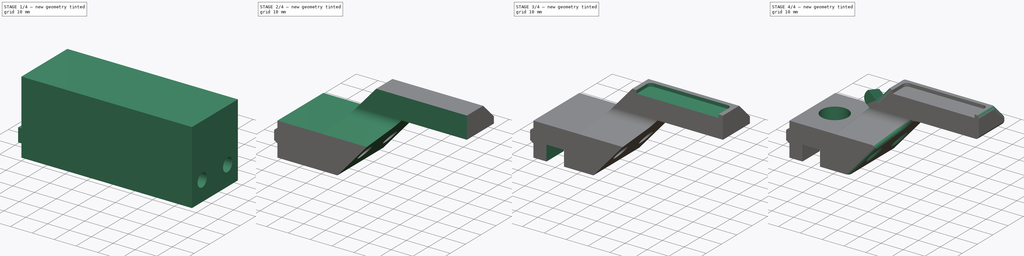
[diagram: build sequence overview — one tinted view per stage of 4, left to right]
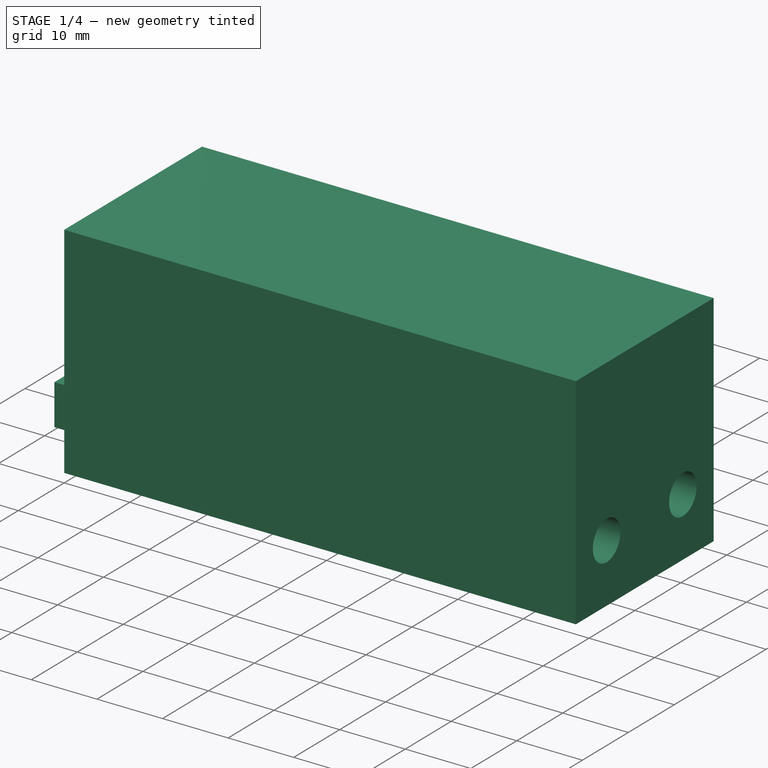
[diagram: stage 1 of 4 — iso view after this stage's code; geometry added in this stage tinted green]
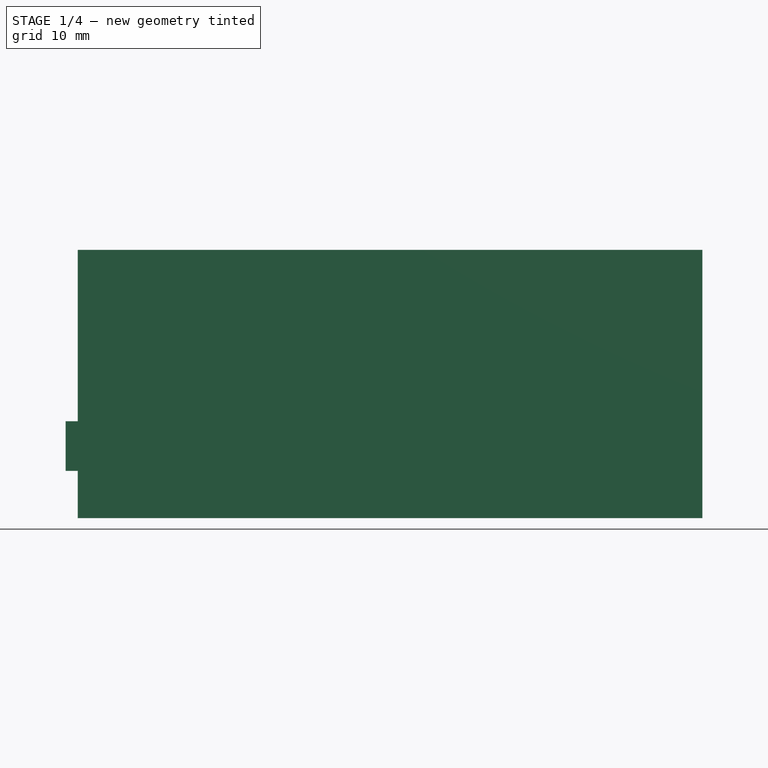
[diagram: stage 1 of 4 — front view after this stage's code; geometry added in this stage tinted green]
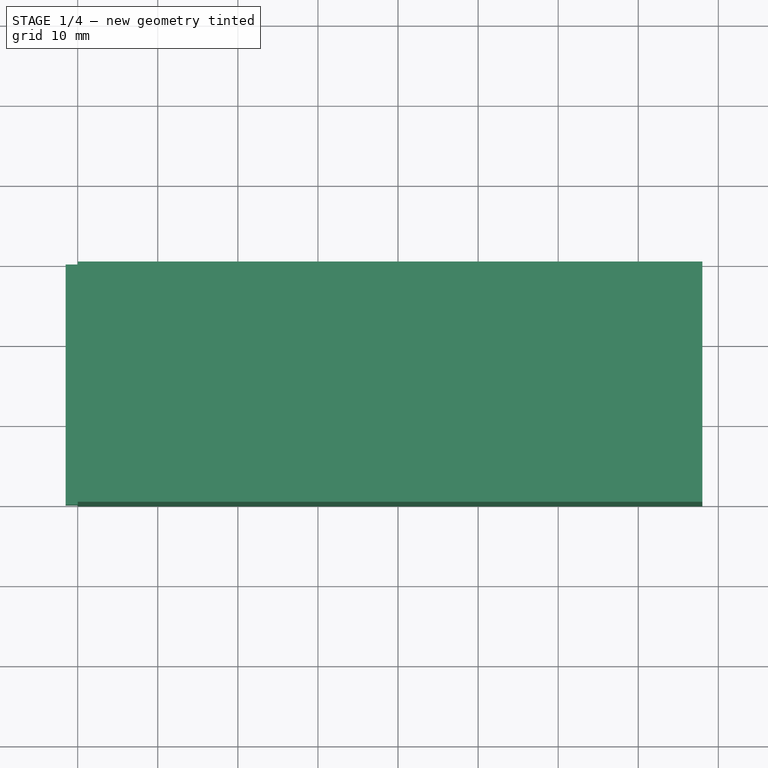
[diagram: stage 1 of 4 — top view after this stage's code; geometry added in this stage tinted green]
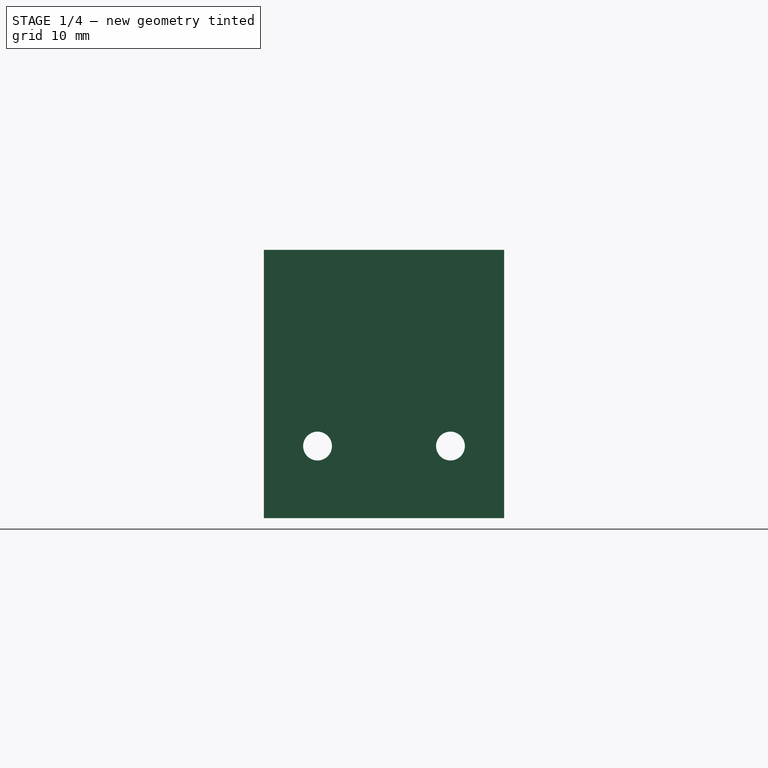
[diagram: stage 1 of 4 — right view after this stage's code; geometry added in this stage tinted green]
FCSTD DOCUMENT  (FreeCAD 1.0R39319 (Git))
Label: ZEndStopAndNozzleWisher
License: All rights reserved
LicenseURL: https://en.wikipedia.org/wiki/All_rights_reserved
objects: Sketcher::SketchObject×11, PartDesign::Pocket×8, PartDesign::Pad×3, PartDesign::Fillet×2, App::VarSet×1, PartDesign::Chamfer×1, PartDesign::Plane×1, PartDesign::Body×1
note: 66 computed .brp shape members not serialized (recipe doc carries the construction recipe); baked Part::Feature solids carry a one-line shape summary decoded from their .brp

FEATURE [App::VarSet] VarSet
  BackBodyToPlate = 11
  Border = 2
  DX = 78
  DY = 30
  DZ = 33.5
  EndStopDX = 20.5
  EndStopDZ = 15.3
  JstDX = 11.4
  JstDY = 8
  JstDZ = 7
  M3HeadDiameter = 6
  M3HeadRecess = 63
  M3Length = 19
  M3PassThrough = 3.6
  MiniScrewSelfTapping = 1.6
  NozzleDiameter = 16
  PcbFixDX = 24.2
  PcbFixDY = 15
  PoleBodyDepth = 8.3
  PoleBodyDiameter = 12.1
  ScrewDistanceFromBase = 9
  ScrewsDistance = 16.6
  WisherDX = 37.5
  WisherDY = 8.6
  WisherDZ = 10
  WisherOffsetFromRear = 17.6
  expr: DX = EndStopDX + NozzleDiameter + WisherDX + 2 * Border
  expr: M3HeadRecess = DX - M3Length + 4 mm
FEATURE [Sketcher::SketchObject] Sketch
  ArcFitTolerance = 1e-06
  AttachmentSupport = -> [XY_Plane]
  FullyConstrained = true
  MakeInternals = false
  MapMode = 5
  expr: Constraints[10] = VarSet.DY
  expr: Constraints[9] = VarSet.DX
  sketch-geometry (4):
    g0: LineSegment StartX=0 StartY=0 StartZ=0 EndX=78 EndY=0 EndZ=0
    g1: LineSegment StartX=78 StartY=0 StartZ=0 EndX=78 EndY=30 EndZ=0
    g2: LineSegment StartX=78 StartY=30 StartZ=0 EndX=0 EndY=30 EndZ=0
    g3: LineSegment StartX=0 StartY=30 StartZ=0 EndX=0 EndY=0 EndZ=0
  constraints (11):
    c: Coincident(g0,g1)
    c: Coincident(g1,g2)
    c: Coincident(g2,g3)
    c: Coincident(g3,g0)
    c: Horizontal(g0)
    c: Horizontal(g2)
    c: Vertical(g1)
    c: Vertical(g3)
    c: Coincident(g0,g-1)
    c: Distance(g0) = 78
    c: Distance(g3) = 30
FEATURE [PartDesign::Pad] Pad  label="Body Envelope"
  Direction = (0,0,1)
  Length = 33.5
  Length2 = 10
  Profile = -> Sketch
  ReferenceAxis = -> Sketch [N_Axis]
  Refine = true
  Suppressed = false
  Type = 0
  expr: Length = VarSet.DZ
FEATURE [Sketcher::SketchObject] Sketch001
  ArcFitTolerance = 1e-06
  AttachmentSupport = -> [Pad]
  ExternalGeometry = -> [Pad]
  FullyConstrained = true
  MakeInternals = false
  MapMode = 5
  Placement = pos=(0,0,0) rot=(0.57735,-0.57735,-0.57735;2.0944rad)
  expr: Constraints[13] = VarSet.M3PassThrough
  expr: Constraints[14] = VarSet.ScrewsDistance
  expr: Constraints[9] = VarSet.ScrewDistanceFromBase
  sketch-geometry (6):
    g0: LineSegment [constr] StartX=-23.3 StartY=9 StartZ=0 EndX=-6.7 EndY=9 EndZ=0
    g1: LineSegment [constr] StartX=-23.3 StartY=9 StartZ=0 EndX=-23.3 EndY=0 EndZ=0
    g2: LineSegment [constr] StartX=-23.3 StartY=9 StartZ=0 EndX=-30 EndY=0 EndZ=0
    g3: LineSegment [constr] StartX=-6.7 StartY=9 StartZ=0 EndX=-9e-16 EndY=0 EndZ=0
    g4: Circle CenterX=-23.3 CenterY=9 CenterZ=0 NormalX=0 NormalY=0 NormalZ=1 AngleXU=0 Radius=1.8
    g5: Circle CenterX=-6.7 CenterY=9 CenterZ=0 NormalX=0 NormalY=0 NormalZ=1 AngleXU=0 Radius=1.8
  constraints (15):
    c: Horizontal(g0)
    c: Coincident(g1,g0)
    c: PointOnObject(g1,g-1)
    c: Vertical(g1)
    c: Coincident(g2,g0)
    c: Coincident(g2,g-3)
    c: Coincident(g3,g0)
    c: Coincident(g3,g-1)
    c: Equal(g2,g3)
    c: Distance(g1) = 9
    c: Coincident(g4,g0)
    c: Coincident(g5,g0)
    c: Equal(g4,g5)
    c: Diameter(g4) = 3.6
    c: Distance(g0) = 16.6
FEATURE [PartDesign::Pocket] Pocket  label="Extrusion Fix"
  BaseFeature = -> Pad
  Direction = (1,0,0)
  Length = 5
  Length2 = 5
  Profile = -> Sketch001
  ReferenceAxis = -> Sketch001 [N_Axis]
  Refine = true
  Suppressed = false
  Type = 1
FEATURE [Sketcher::SketchObject] Sketch002
  ArcFitTolerance = 1e-06
  AttachmentSupport = -> [Pocket]
  ExternalGeometry = -> [Pocket]
  FullyConstrained = true
  MakeInternals = false
  MapMode = 5
  Placement = pos=(78,0,0) rot=(0.57735,0.57735,0.57735;2.0944rad)
  expr: Constraints[3] = VarSet.M3HeadDiameter
  sketch-geometry (2):
    g0: Circle CenterX=6.7 CenterY=9 CenterZ=0 NormalX=0 NormalY=0 NormalZ=1 AngleXU=0 Radius=3
    g1: Circle CenterX=23.3 CenterY=9 CenterZ=0 NormalX=0 NormalY=0 NormalZ=1 AngleXU=0 Radius=3
  constraints (4):
    c: Coincident(g0,g-3)
    c: Coincident(g1,g-4)
    c: Equal(g0,g1)
    c: Diameter(g0) = 6
FEATURE [PartDesign::Pocket] Pocket001  label="M3 Head Recess"
  BaseFeature = -> Pocket
  Direction = (-1,0,0)
  Length = 63
  Length2 = 5
  Profile = -> Sketch002
  ReferenceAxis = -> Sketch002 [N_Axis]
  Refine = true
  Suppressed = false
  Type = 0
  expr: Length = VarSet.M3HeadRecess
FEATURE [Sketcher::SketchObject] Sketch003
  ArcFitTolerance = 1e-06
  AttachmentSupport = -> [Pocket001]
  ExternalGeometry = -> [Pocket001]
  FullyConstrained = true
  MakeInternals = false
  MapMode = 5
  Placement = pos=(0,0,0) rot=(0.57735,-0.57735,-0.57735;2.0944rad)
  sketch-geometry (9):
    g0: LineSegment StartX=-30 StartY=12.1 StartZ=0 EndX=-30 EndY=5.9 EndZ=0
    g1: LineSegment StartX=-30 StartY=5.9 StartZ=0 EndX=0 EndY=5.9 EndZ=0
    g2: LineSegment StartX=0 StartY=5.9 StartZ=0 EndX=0 EndY=12.1 EndZ=0
    g3: LineSegment StartX=0 StartY=12.1 StartZ=0 EndX=-30 EndY=12.1 EndZ=0
    g4: LineSegment [constr] StartX=-30 StartY=5.9 StartZ=0 EndX=-23.3 EndY=9 EndZ=0
    g5: LineSegment [constr] StartX=-6.7 StartY=9 StartZ=0 EndX=0 EndY=12.1 EndZ=0
    g6: LineSegment [constr] StartX=-6.7 StartY=9 StartZ=0 EndX=0 EndY=5.9 EndZ=0
    g7: Circle CenterX=-23.3 CenterY=9 CenterZ=0 NormalX=0 NormalY=0 NormalZ=1 AngleXU=0 Radius=1.8
    g8: Circle CenterX=-6.7 CenterY=9 CenterZ=0 NormalX=0 NormalY=0 NormalZ=1 AngleXU=0 Radius=1.79999
  constraints (22):
    c: Coincident(g0,g1)
    c: Coincident(g1,g2)
    c: Coincident(g2,g3)
    c: Coincident(g3,g0)
    c: Vertical(g0)
    c: Vertical(g2)
    c: Horizontal(g1)
    c: Horizontal(g3)
    c: Distance(g2) = 6.2
    c: Coincident(g4,g0)
    c: Coincident(g4,g-4)
    c: Coincident(g5,g-3)
    c: Coincident(g5,g2)
    c: Coincident(g6,g5)
    c: Coincident(g6,g1)
    c: Equal(g6,g5)
    c: Equal(g5,g4)
    c: PointOnObject(g2,g-2)
    c: Coincident(g7,g4)
    c: Tangent(g7,g-4)
    c: Coincident(g8,g5)
    c: Tangent(g8,g-3)
FEATURE [PartDesign::Pad] Pad001  label="Extrusion Guide"
  BaseFeature = -> Pocket001
  Direction = (-1,0,0)
  Length = 1.5
  Length2 = 10
  Profile = -> Sketch003
  ReferenceAxis = -> Sketch003 [N_Axis]
  Refine = true
  Suppressed = false
  Type = 0
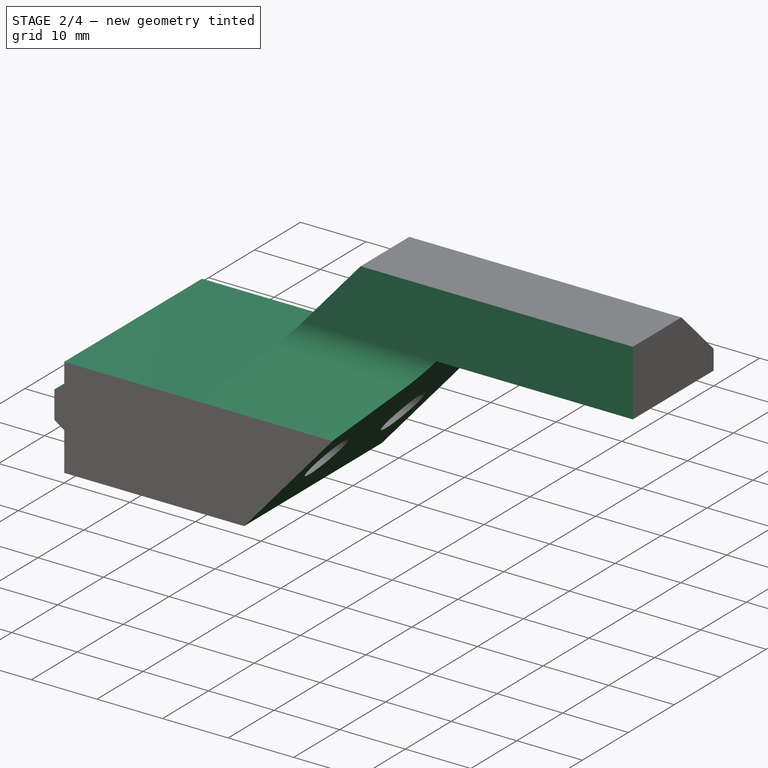
[diagram: stage 2 of 4 — iso view after this stage's code; geometry added in this stage tinted green]
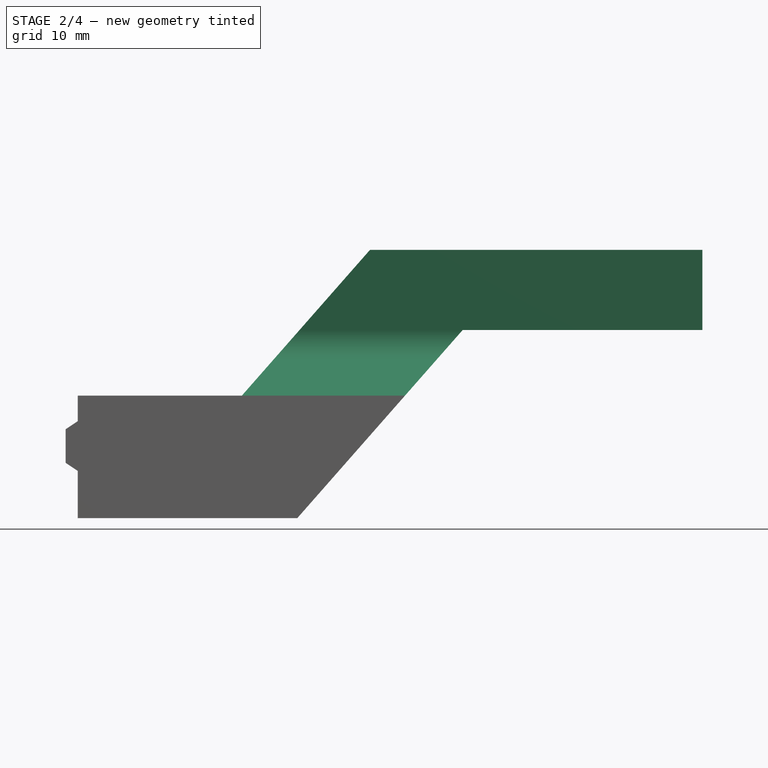
[diagram: stage 2 of 4 — front view after this stage's code; geometry added in this stage tinted green]
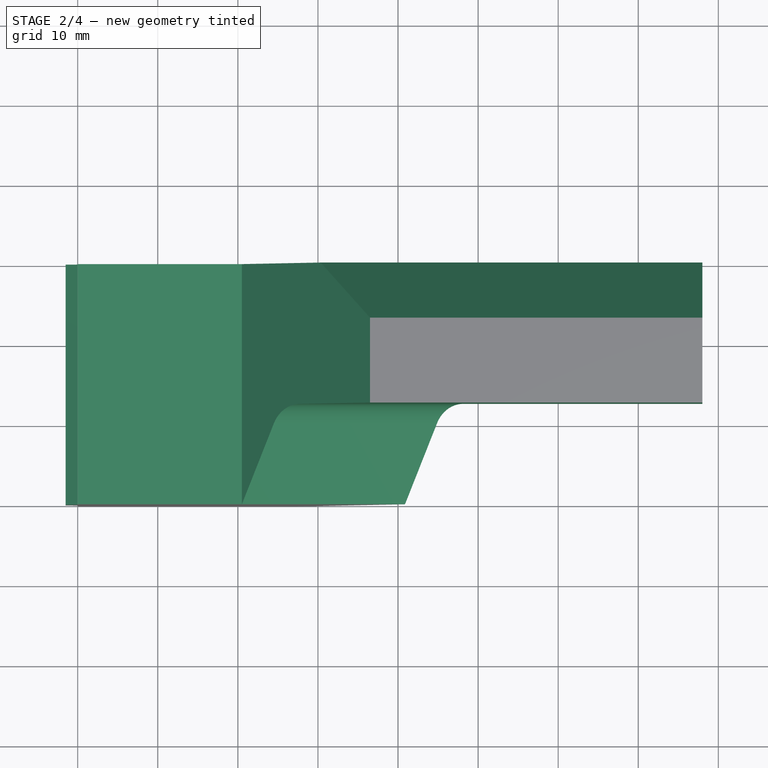
[diagram: stage 2 of 4 — top view after this stage's code; geometry added in this stage tinted green]
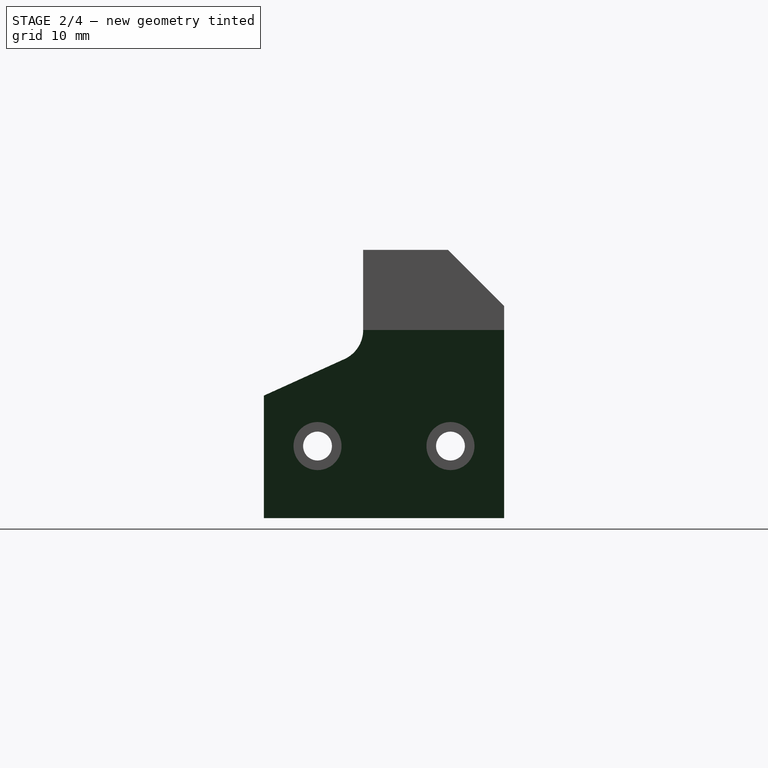
[diagram: stage 2 of 4 — right view after this stage's code; geometry added in this stage tinted green]
FEATURE [PartDesign::Chamfer] Chamfer  label="Extrusion Guide Chamfer"
  Angle = 45
  Base = -> Pad001 [Edge24,Edge21]
  BaseFeature = -> Pad001
  ChamferType = 1
  FlipDirection = false
  Refine = true
  Size = 1.49
  Size2 = 1
  SupportTransform = false
  Suppressed = false
  UseAllEdges = false
FEATURE [Sketcher::SketchObject] Sketch004
  ArcFitTolerance = 1e-06
  AttachmentSupport = -> [Chamfer]
  ExternalGeometry = -> [Chamfer]
  FullyConstrained = true
  MakeInternals = false
  MapMode = 5
  Placement = pos=(0,0,0) rot=(1,0,0;1.5708rad)
  expr: Constraints[16] = VarSet.WisherDZ
  expr: Constraints[2] = VarSet.EndStopDX
  expr: Constraints[5] = VarSet.EndStopDZ
  expr: Constraints[6] = VarSet.WisherDX + 2 * VarSet.Border
  sketch-geometry (13):
    g0: LineSegment StartX=0 StartY=15.3 StartZ=0 EndX=20.5 EndY=15.3 EndZ=0
    g1: LineSegment [constr] StartX=0 StartY=15.3 StartZ=0 EndX=0 EndY=0 EndZ=0
    g2: LineSegment [constr] StartX=78 StartY=33.5 StartZ=0 EndX=36.5 EndY=33.5 EndZ=0
    g3: LineSegment StartX=20.5 StartY=15.3 StartZ=0 EndX=36.5 EndY=33.5 EndZ=0
    g4: LineSegment StartX=36.5 StartY=33.5 StartZ=0 EndX=0 EndY=33.5 EndZ=0
    g5: LineSegment StartX=0 StartY=33.5 StartZ=0 EndX=0 EndY=15.3 EndZ=0
    g6: LineSegment [constr] StartX=78 StartY=33.5 StartZ=0 EndX=78 EndY=23.5 EndZ=0
    g7: LineSegment [constr] StartX=28.5 StartY=24.4 StartZ=0 EndX=39.9909 EndY=14.2981 EndZ=0
    g8: LineSegment [constr] StartX=0 StartY=0 StartZ=0 EndX=27.4212 EndY=0 EndZ=0
    g9: LineSegment StartX=27.4212 StartY=0 StartZ=0 EndX=48.0805 EndY=23.5 EndZ=0
    g10: LineSegment StartX=78 StartY=23.5 StartZ=0 EndX=48.0805 EndY=23.5 EndZ=0
    g11: LineSegment StartX=27.4212 StartY=0 StartZ=0 EndX=78 EndY=0 EndZ=0
    g12: LineSegment StartX=78 StartY=23.5 StartZ=0 EndX=78 EndY=0 EndZ=0
  constraints (34):
    c: PointOnObject(g0,g-2)
    c: Horizontal(g0)
    c: Distance(g0) = 20.5
    c: Coincident(g1,g0)
    c: Coincident(g1,g-1)
    c: Distance(g1) = 15.3
    c: Distance(g2) = 41.5
    c: Coincident(g3,g0)
    c: Coincident(g3,g2)
    c: Coincident(g4,g3)
    c: Coincident(g4,g-3)
    c: Horizontal(g4)
    c: Coincident(g5,g4)
    c: Coincident(g5,g0)
    c: Coincident(g6,g2)
    c: Vertical(g6)
    c: Distance(g6) = 10
    c: Coincident(g2,g-3)
    c: Symmetric(g3,g3,g7)
    c: Equal(g7,g1)
    c: Perpendicular(g3,g7)
    c: Coincident(g8,g1)
    c: PointOnObject(g8,g-1)
    c: Coincident(g9,g8)
    c: PointOnObject(g7,g9)
    c: Parallel(g9,g3)
    c: Coincident(g10,g6)
    c: Horizontal(g10)
    c: Coincident(g10,g9)
    c: Coincident(g11,g8)
    c: Horizontal(g11)
    c: Coincident(g12,g6)
    c: Vertical(g12)
    c: Coincident(g12,g11)
FEATURE [PartDesign::Pocket] Pocket002  label="Endstop To Wisher Front Shape"
  BaseFeature = -> Chamfer
  Direction = (0,1,-2e-16)
  Length = 5
  Length2 = 5
  Profile = -> Sketch004
  ReferenceAxis = -> Sketch004 [N_Axis]
  Refine = true
  Suppressed = false
  Type = 1
FEATURE [PartDesign::Plane] DatumPlane
  AttachmentSupport = -> [Pocket002]
  Length = 118.053
  MapMode = 5
  Placement = pos=(0,3.4e-15,15.3) rot=(0,0,1;0rad)
  ResizeMode = 0
  Width = 70.0532
FEATURE [Sketcher::SketchObject] Sketch005
  ArcFitTolerance = 1e-06
  AttachmentSupport = -> [Pocket002]
  ExternalGeometry = -> [Pocket002,DatumPlane]
  FullyConstrained = true
  MakeInternals = false
  MapMode = 5
  Placement = pos=(78,0,0) rot=(0.57735,0.57735,0.57735;2.0944rad)
  expr: Constraints[10] = VarSet.WisherDZ
  expr: Constraints[19] = VarSet.WisherOffsetFromRear - VarSet.WisherDY - VarSet.Border
  expr: Constraints[1] = VarSet.WisherOffsetFromRear
  sketch-geometry (10):
    g0: LineSegment [constr] StartX=30 StartY=33.5 StartZ=0 EndX=12.4 EndY=33.5 EndZ=0
    g1: LineSegment StartX=-5.955e-13 StartY=15.3 StartZ=0 EndX=10.0516 EndY=19.8569 EndZ=0
    g2: LineSegment StartX=-5.955e-13 StartY=15.3 StartZ=0 EndX=0 EndY=33.5 EndZ=0
    g3: LineSegment StartX=0 StartY=33.5 StartZ=0 EndX=12.4 EndY=33.5 EndZ=0
    g4: LineSegment StartX=12.4 StartY=33.5 StartZ=0 EndX=12.4 EndY=23.5 EndZ=0
    g5: ArcOfCircle CenterX=8.4 CenterY=23.5 CenterZ=0 NormalX=0 NormalY=0 NormalZ=1 AngleXU=0 Radius=4 StartAngle=5.13803 EndAngle=6.28319
    g6: LineSegment [constr] StartX=12.4 StartY=23.5 StartZ=0 EndX=8.4 EndY=23.5 EndZ=0
    g7: LineSegment StartX=30 StartY=33.5 StartZ=0 EndX=23 EndY=33.5 EndZ=0
    g8: LineSegment StartX=30 StartY=33.5 StartZ=0 EndX=30 EndY=26.5 EndZ=0
    g9: LineSegment StartX=23 StartY=33.5 StartZ=0 EndX=30 EndY=26.5 EndZ=0
  constraints (25):
    c: PointOnObject(g0,g-3)
    c: Distance(g0) = 17.6
    c: Coincident(g0,g-3)
    c: Symmetric(g-4,g-4,g1)
    c: Coincident(g2,g1)
    c: Coincident(g2,g-3)
    c: Coincident(g3,g2)
    c: Coincident(g3,g0)
    c: Coincident(g4,g0)
    c: Vertical(g4)
    c: Distance(g4) = 10
    c: Coincident(g5,g4)
    c: Coincident(g6,g4)
    c: Horizontal(g6)
    c: Coincident(g6,g5)
    c: Tangent(g1,g5) = -1.5708
    c: Diameter(g5) = 8
    c: Coincident(g7,g0)
    c: PointOnObject(g7,g0)
    c: Distance(g7) = 7
    c: Coincident(g8,g0)
    c: Vertical(g8)
    c: Equal(g8,g7)
    c: Coincident(g9,g7)
    c: Coincident(g9,g8)
FEATURE [PartDesign::Pocket] Pocket003  label="Endstop To Wisher Side Shape"
  BaseFeature = -> Pocket002
  Direction = (-1,0,0)
  Length = 5
  Length2 = 5
  Profile = -> Sketch005
  ReferenceAxis = -> Sketch005 [N_Axis]
  Refine = true
  Suppressed = false
  Type = 1
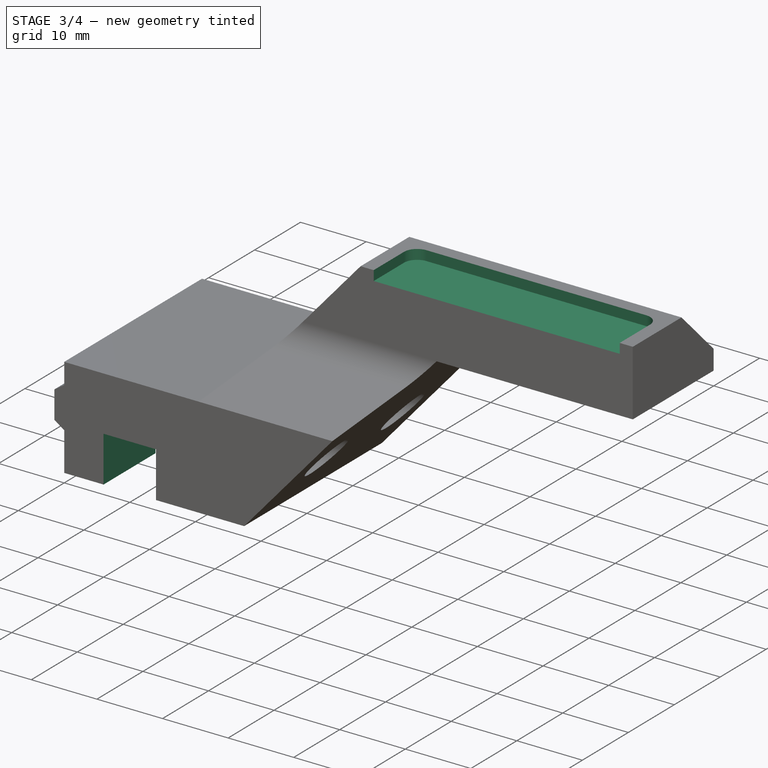
[diagram: stage 3 of 4 — iso view after this stage's code; geometry added in this stage tinted green]
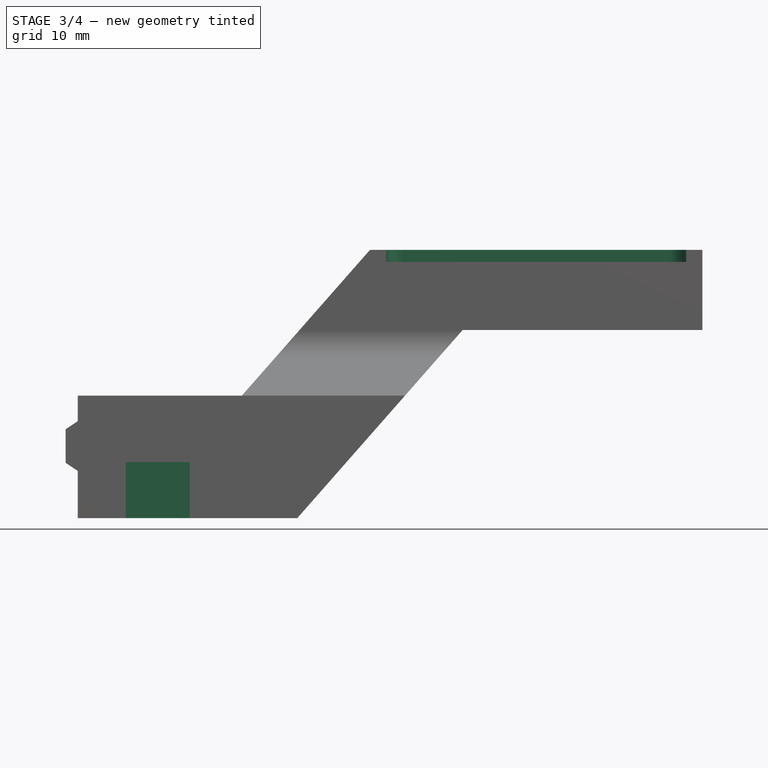
[diagram: stage 3 of 4 — front view after this stage's code; geometry added in this stage tinted green]
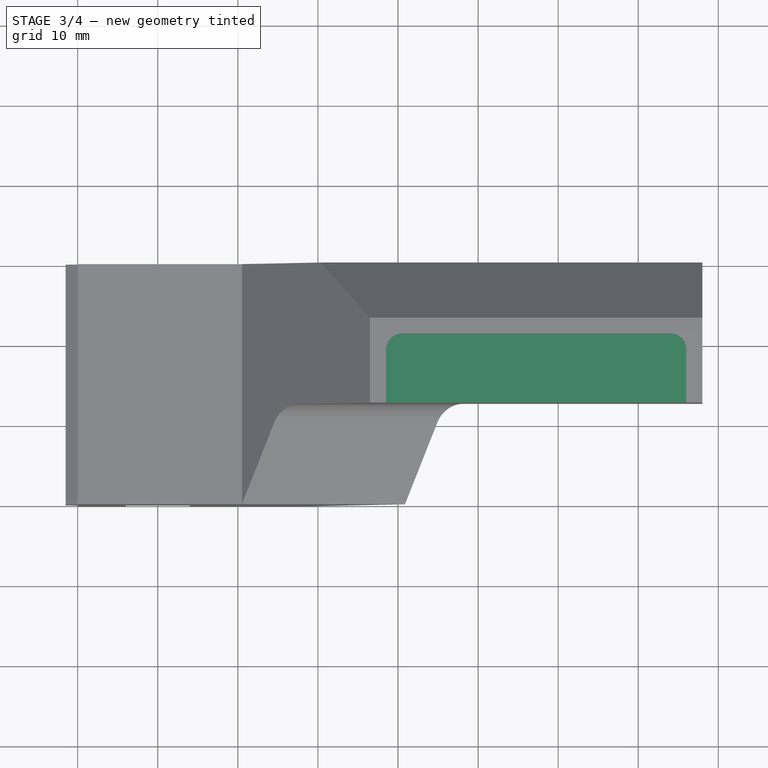
[diagram: stage 3 of 4 — top view after this stage's code; geometry added in this stage tinted green]
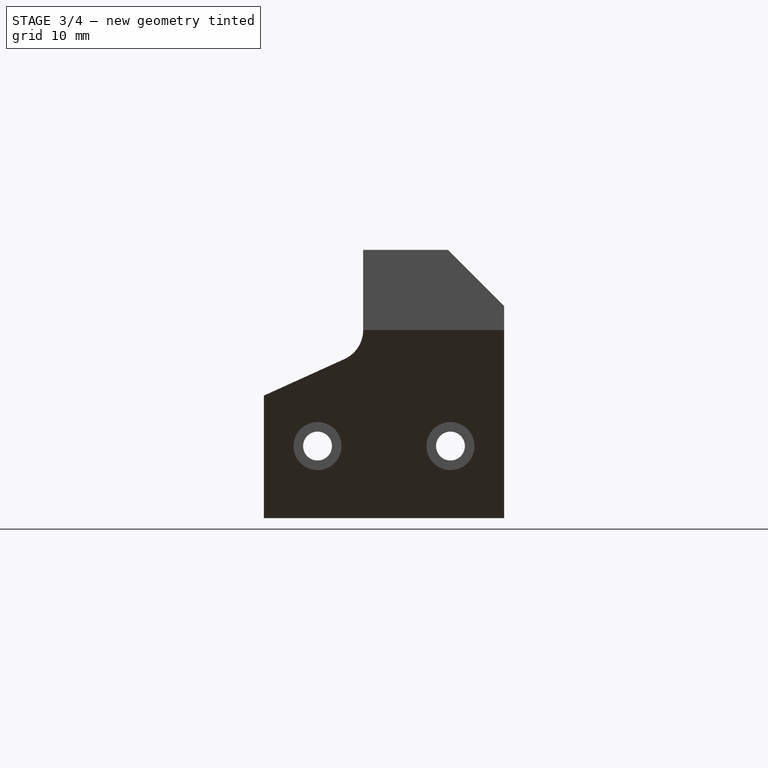
[diagram: stage 3 of 4 — right view after this stage's code; geometry added in this stage tinted green]
FEATURE [Sketcher::SketchObject] Sketch006
  ArcFitTolerance = 1e-06
  AttachmentSupport = -> [Pocket003]
  ExternalGeometry = -> [Pocket003]
  FullyConstrained = true
  MakeInternals = false
  MapMode = 5
  Placement = pos=(0,0,33.5) rot=(0,0,1;0rad)
  expr: Constraints[11] = VarSet.WisherDY
  expr: Constraints[4] = VarSet.WisherDX
  expr: Constraints[7] = VarSet.Border
  sketch-geometry (10):
    g0: LineSegment StartX=38.5 StartY=12.4 StartZ=0 EndX=76 EndY=12.4 EndZ=0
    g1: LineSegment StartX=76 StartY=12.4 StartZ=0 EndX=76 EndY=19 EndZ=0
    g2: LineSegment StartX=38.5 StartY=12.4 StartZ=0 EndX=38.5 EndY=19 EndZ=0
    g3: LineSegment [constr] StartX=76 StartY=12.4 StartZ=0 EndX=78 EndY=12.4 EndZ=0
    g4: LineSegment StartX=40.5 StartY=21 StartZ=0 EndX=74 EndY=21 EndZ=0
    g5: LineSegment [constr] StartX=57.25 StartY=12.4 StartZ=0 EndX=57.25 EndY=21 EndZ=0
    g6: ArcOfCircle CenterX=40.5 CenterY=19 CenterZ=0 NormalX=0 NormalY=0 NormalZ=1 AngleXU=0 Radius=2 StartAngle=1.5708 EndAngle=3.14159
    g7: GeomPoint [constr] X=38.5 Y=21 Z=0
    g8: ArcOfCircle CenterX=74 CenterY=19 CenterZ=0 NormalX=0 NormalY=0 NormalZ=1 AngleXU=0 Radius=2 StartAngle=0 EndAngle=1.5708
    g9: GeomPoint [constr] X=76 Y=21 Z=0
  constraints (24):
    c: Coincident(g1,g0)
    c: Vertical(g1)
    c: Coincident(g2,g0)
    c: Vertical(g2)
    c: Distance(g0) = 37.5
    c: Coincident(g3,g0)
    c: Coincident(g3,g-3)
    c: Distance(g3) = 2
    c: Horizontal(g4)
    c: Symmetric(g0,g0,g5)
    c: Symmetric(g7,g9,g5)
    c: Distance(g5) = 8.6
    c: PointOnObject(g7,g2)
    c: PointOnObject(g7,g4)
    c: Tangent(g2,g6) = 1.5708
    c: Tangent(g4,g6) = 1.5708
    c: PointOnObject(g9,g1)
    c: PointOnObject(g9,g4)
    c: Tangent(g1,g8) = -1.5708
    c: Tangent(g4,g8) = 1.5708
    c: Equal(g8,g6)
    c: Diameter(g6) = 4
    c: PointOnObject(g0,g-4)
    c: PointOnObject(g0,g-4)
FEATURE [PartDesign::Pocket] Pocket004  label="Silicone Wisher"
  BaseFeature = -> Pocket003
  Direction = (0,0,-1)
  Length = 1.5
  Length2 = 5
  Profile = -> Sketch006
  ReferenceAxis = -> Sketch006 [N_Axis]
  Refine = true
  Suppressed = false
  Type = 0
FEATURE [Sketcher::SketchObject] Sketch007
  ArcFitTolerance = 1e-06
  AttachmentSupport = -> [Pocket004]
  ExternalGeometry = -> [Pocket004]
  FullyConstrained = true
  MakeInternals = false
  MapMode = 5
  Placement = pos=(0,0,0) rot=(1,0,0;3.14159rad)
  expr: Constraints[23] = VarSet.MiniScrewSelfTapping
  expr: Constraints[8] = VarSet.PcbFixDY
  expr: Constraints[9] = VarSet.PcbFixDX
  sketch-geometry (17):
    g0: LineSegment [constr] StartX=2.5 StartY=-2.9 StartZ=0 EndX=2.5 EndY=-27.1 EndZ=0
    g1: LineSegment [constr] StartX=2.5 StartY=-27.1 StartZ=0 EndX=17.5 EndY=-27.1 EndZ=0
    g2: LineSegment [constr] StartX=17.5 StartY=-27.1 StartZ=0 EndX=17.5 EndY=-2.9 EndZ=0
    g3: LineSegment [constr] StartX=17.5 StartY=-2.9 StartZ=0 EndX=2.5 EndY=-2.9 EndZ=0
    g4: LineSegment [constr] StartX=2.5 StartY=-2.9 StartZ=0 EndX=2.5 EndY=0 EndZ=0
    g5: LineSegment [constr] StartX=2.5 StartY=-27.1 StartZ=0 EndX=2.5 EndY=-30 EndZ=0
    g6: Circle CenterX=17.5 CenterY=-27.1 CenterZ=0 NormalX=0 NormalY=0 NormalZ=1 AngleXU=0 Radius=0.8
    g7: Circle CenterX=2.5 CenterY=-27.1 CenterZ=0 NormalX=0 NormalY=0 NormalZ=1 AngleXU=0 Radius=0.8
    g8: Circle CenterX=2.5 CenterY=-2.9 CenterZ=0 NormalX=0 NormalY=0 NormalZ=1 AngleXU=0 Radius=0.8
    g9: Circle CenterX=17.5 CenterY=-2.9 CenterZ=0 NormalX=0 NormalY=0 NormalZ=1 AngleXU=0 Radius=0.8
    g10: LineSegment [constr] StartX=0 StartY=0 StartZ=0 EndX=6 EndY=0 EndZ=0
    g11: LineSegment StartX=6 StartY=0 StartZ=0 EndX=6 EndY=-11.3 EndZ=0
    g12: LineSegment StartX=6 StartY=-11.3 StartZ=0 EndX=14 EndY=-11.3 EndZ=0
    g13: LineSegment StartX=14 StartY=-11.3 StartZ=0 EndX=14 EndY=0 EndZ=0
    g14: LineSegment StartX=14 StartY=0 StartZ=0 EndX=6 EndY=0 EndZ=0
    g15: LineSegment [constr] StartX=6 StartY=-11.3 StartZ=0 EndX=2.5 EndY=-2.9 EndZ=0
    g16: LineSegment [constr] StartX=14 StartY=-11.3 StartZ=0 EndX=17.5 EndY=-2.9 EndZ=0
  constraints (44):
    c: Coincident(g0,g1)
    c: Coincident(g1,g2)
    c: Coincident(g2,g3)
    c: Coincident(g3,g0)
    c: Vertical(g0)
    c: Vertical(g2)
    c: Horizontal(g1)
    c: Horizontal(g3)
    c: Distance(g3) = 15
    c: Distance(g0) = 24.2
    c: Coincident(g4,g0)
    c: PointOnObject(g4,g-1)
    c: Vertical(g4)
    c: Coincident(g5,g0)
    c: Vertical(g5)
    c: Equal(g5,g4)
    c: Coincident(g6,g1)
    c: Coincident(g7,g0)
    c: Coincident(g8,g0)
    c: Coincident(g9,g2)
    c: Equal(g8,g9)
    c: Equal(g9,g6)
    c: Equal(g6,g7)
    c: Diameter(g8) = 1.6
    c: Coincident(g10,g-1)
    c: PointOnObject(g10,g-1)
    c: Distance(g10) = 6
    c: Coincident(g11,g12)
    c: Coincident(g12,g13)
    c: Coincident(g13,g14)
    c: Coincident(g14,g11)
    c: Vertical(g11)
    c: Vertical(g13)
    c: Horizontal(g12)
    c: Horizontal(g14)
    c: Coincident(g11,g10)
    c: Distance(g14) = 8
    c: Distance(g11) = 11.3
    c: Coincident(g15,g11)
    c: Coincident(g15,g0)
    c: Coincident(g16,g12)
    c: Coincident(g16,g2)
    c: Equal(g16,g15)
    c: PointOnObject(g5,g-3)
FEATURE [PartDesign::Pocket] Pocket005  label="JST Connector and PCB Fix"
  BaseFeature = -> Pocket004
  Direction = (0,0,1)
  Length = 7
  Length2 = 5
  Profile = -> Sketch007
  ReferenceAxis = -> Sketch007 [N_Axis]
  Refine = true
  Suppressed = false
  Type = 0
  expr: Length = VarSet.JstDZ
FEATURE [Sketcher::SketchObject] Sketch008
  ArcFitTolerance = 1e-06
  AttachmentSupport = -> [Pocket005]
  ExternalGeometry = -> [Pocket005]
  FullyConstrained = true
  MakeInternals = false
  MapMode = 5
  Placement = pos=(0,0,0) rot=(1,0,0;3.14159rad)
  sketch-geometry (5):
    g0: LineSegment StartX=4.6 StartY=-11.3 StartZ=0 EndX=4.6 EndY=-17.3 EndZ=0
    g1: LineSegment StartX=4.6 StartY=-17.3 StartZ=0 EndX=18.1 EndY=-17.3 EndZ=0
    g2: LineSegment StartX=18.1 StartY=-17.3 StartZ=0 EndX=18.1 EndY=-11.3 EndZ=0
    g3: LineSegment StartX=18.1 StartY=-11.3 StartZ=0 EndX=4.6 EndY=-11.3 EndZ=0
    g4: LineSegment [constr] StartX=4.6 StartY=-17.3 StartZ=0 EndX=0 EndY=-17.3 EndZ=0
  constraints (15):
    c: Coincident(g0,g1)
    c: Coincident(g1,g2)
    c: Coincident(g2,g3)
    c: Coincident(g3,g0)
    c: Vertical(g0)
    c: Vertical(g2)
    c: Horizontal(g1)
    c: Horizontal(g3)
    c: Coincident(g4,g0)
    c: PointOnObject(g4,g-2)
    c: Horizontal(g4)
    c: Distance(g4) = 4.6
    c: Distance(g0) = 6
    c: Distance(g3) = 13.5
    c: PointOnObject(g-3,g3)
FEATURE [PartDesign::Pocket] Pocket006  label="Push Button"
  BaseFeature = -> Pocket005
  Direction = (0,0,1)
  Length = 7.5
  Length2 = 5
  Profile = -> Sketch008
  ReferenceAxis = -> Sketch008 [N_Axis]
  Refine = true
  Suppressed = false
  Type = 0
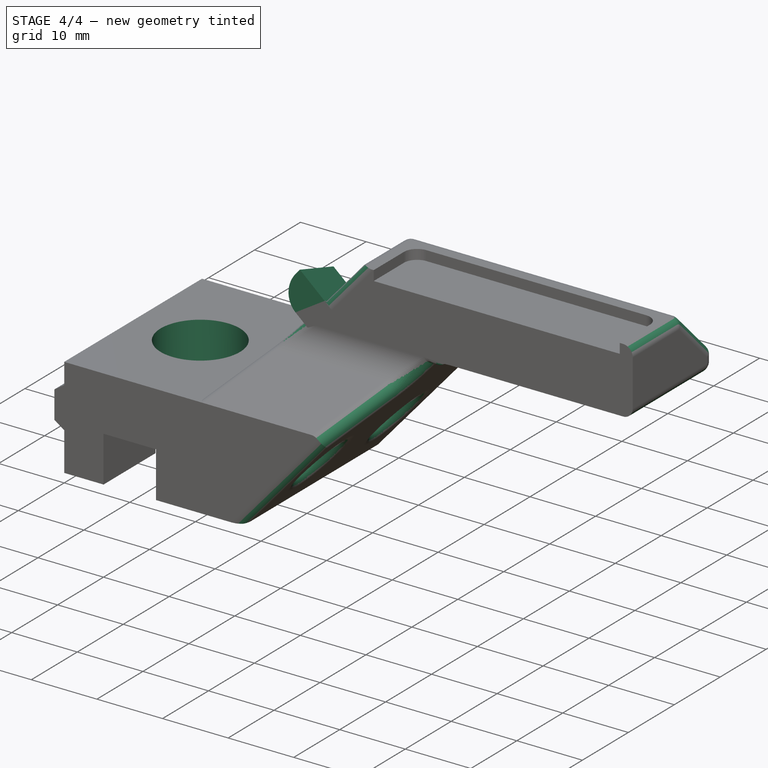
[diagram: stage 4 of 4 — iso view after this stage's code; geometry added in this stage tinted green]
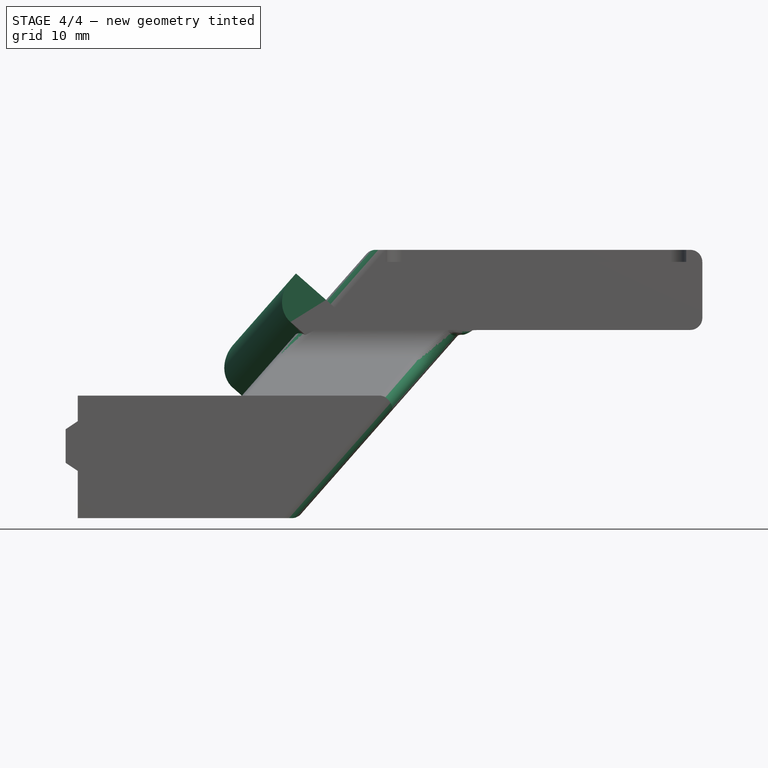
[diagram: stage 4 of 4 — front view after this stage's code; geometry added in this stage tinted green]
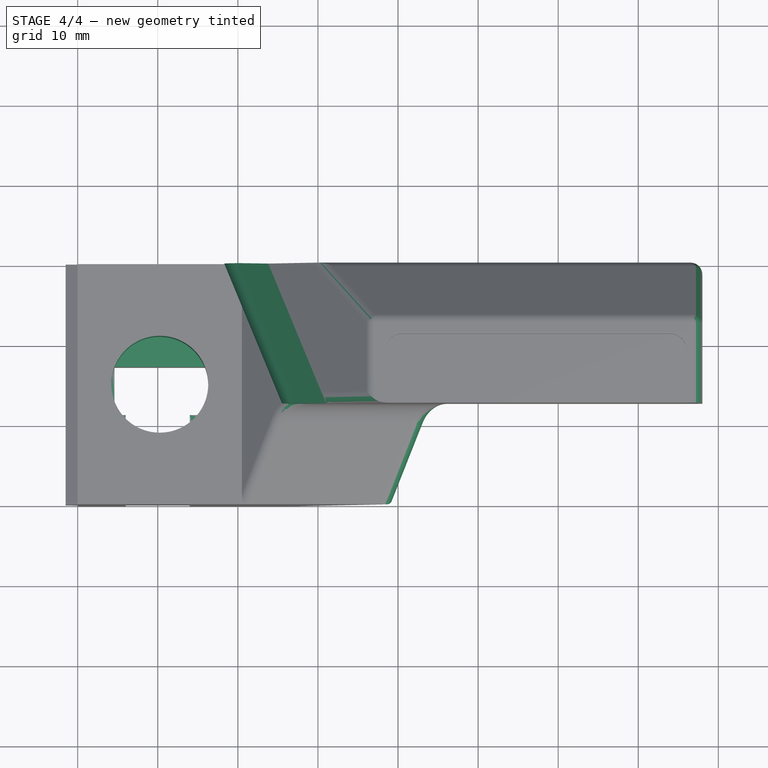
[diagram: stage 4 of 4 — top view after this stage's code; geometry added in this stage tinted green]
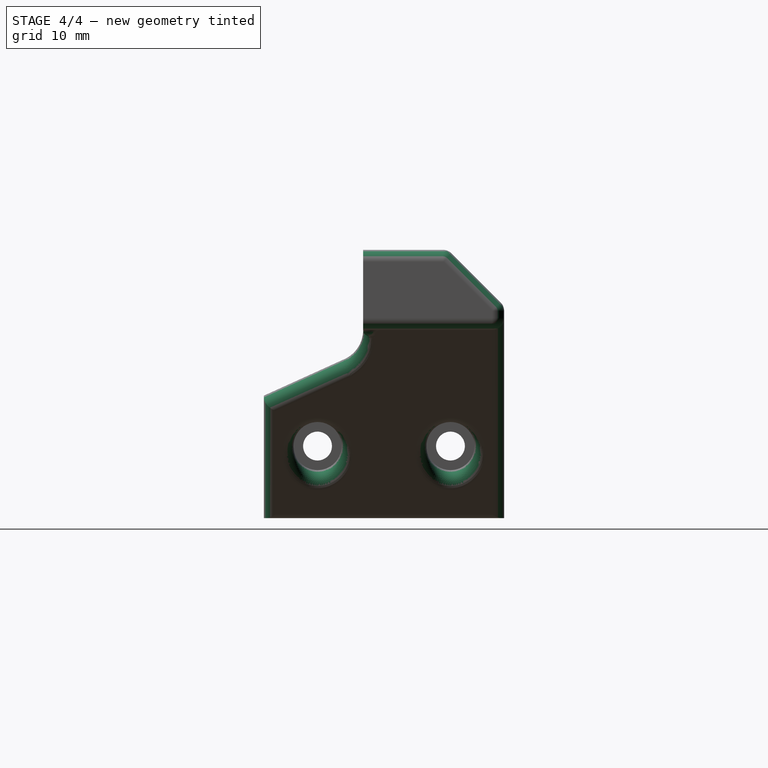
[diagram: stage 4 of 4 — right view after this stage's code; geometry added in this stage tinted green]
FEATURE [Sketcher::SketchObject] Sketch009
  ArcFitTolerance = 1e-06
  AttachmentSupport = -> [Pocket006]
  ExternalGeometry = -> [Pocket006]
  FullyConstrained = true
  MakeInternals = false
  MapMode = 5
  Placement = pos=(0,3.4e-15,15.3) rot=(0,0,1;0rad)
  expr: Constraints[1] = VarSet.PoleBodyDiameter
  sketch-geometry (1):
    g0: Circle CenterX=10.25 CenterY=15 CenterZ=0 NormalX=0 NormalY=0 NormalZ=1 AngleXU=0 Radius=6.05
  constraints (2):
    c: Symmetric(g-1,g-3,g0)
    c: Diameter(g0) = 12.1
FEATURE [PartDesign::Pocket] Pocket007  label="Pole Body"
  BaseFeature = -> Pocket006
  Direction = (0,0,-1)
  Length = 8.3
  Length2 = 5
  Profile = -> Sketch009 [Edge1]
  ReferenceAxis = -> Sketch009 [N_Axis]
  Refine = true
  Suppressed = false
  Type = 0
  expr: Length = VarSet.PoleBodyDepth
FEATURE [Sketcher::SketchObject] Sketch010
  ArcFitTolerance = 1e-06
  AttachmentSupport = -> [Pocket007]
  ExternalGeometry = -> [Pocket007]
  FullyConstrained = true
  MakeInternals = false
  MapMode = 5
  Placement = pos=(3.97633,-8e-16,-3.49567) rot=(0.381059,-0.381059,-0.842371;1.7415rad)
  sketch-geometry (4):
    g0: LineSegment StartX=-12.4 StartY=35.9443 StartZ=0 EndX=-30 EndY=25.0262 EndZ=0
    g1: LineSegment StartX=-30 StartY=25.0262 StartZ=0 EndX=-30 EndY=30.0262 EndZ=0
    g2: LineSegment StartX=-30 StartY=30.0262 StartZ=0 EndX=-12.4 EndY=40.9443 EndZ=0
    g3: LineSegment StartX=-12.4 StartY=35.9443 StartZ=0 EndX=-12.4 EndY=40.9443 EndZ=0
  constraints (10):
    c: Coincident(g1,g0)
    c: Coincident(g2,g1)
    c: Coincident(g3,g0)
    c: Distance(g3) = 5
    c: Equal(g3,g1)
    c: Coincident(g0,g-3)
    c: Coincident(g2,g3)
    c: Vertical(g3)
    c: Coincident(g0,g-4)
    c: PointOnObject(g1,g-4)
FEATURE [PartDesign::Pad] Pad002  label="Dust Guide"
  BaseFeature = -> Pocket007
  Direction = (-0.751041,1e-16,0.660256)
  Length = 5
  Length2 = 10
  Profile = -> Sketch010
  ReferenceAxis = -> Sketch010 [N_Axis]
  Refine = true
  Suppressed = false
  Type = 0
FEATURE [PartDesign::Fillet] Fillet  label="Dust Guide Finish"
  Base = -> Pad002 [Edge4]
  BaseFeature = -> Pad002
  Radius = 3.49
  Refine = true
  SupportTransform = false
  Suppressed = false
  UseAllEdges = false
FEATURE [PartDesign::Fillet] Fillet001  label="Roundings"
  Base = -> Fillet [Edge52,Edge55,Edge31,Edge45,Edge33,Edge35,Edge81,Edge41,Edge29,Edge40,Edge44,Edge8,Edge19,Edge62,Edge80,Edge82,Edge83]
  BaseFeature = -> Fillet
  Radius = 1.5
  Refine = true
  SupportTransform = false
  Suppressed = false
  UseAllEdges = false
FEATURE [PartDesign::Body] Body
  AllowCompound = false
  Group = -> [Sketch,Pad,Sketch001,Pocket,Sketch002,Pocket001,Sketch003,Pad001,Chamfer,Sketch004,Pocket002,Sketch005,DatumPlane,Pocket003,Sketch006,Pocket004,Sketch007,Pocket005,Sketch008,Pocket006,Sketch009,Pocket007,Sketch010,Pad002,Fillet,Fillet001]
  Origin = -> Origin
  Tip = -> Fillet001
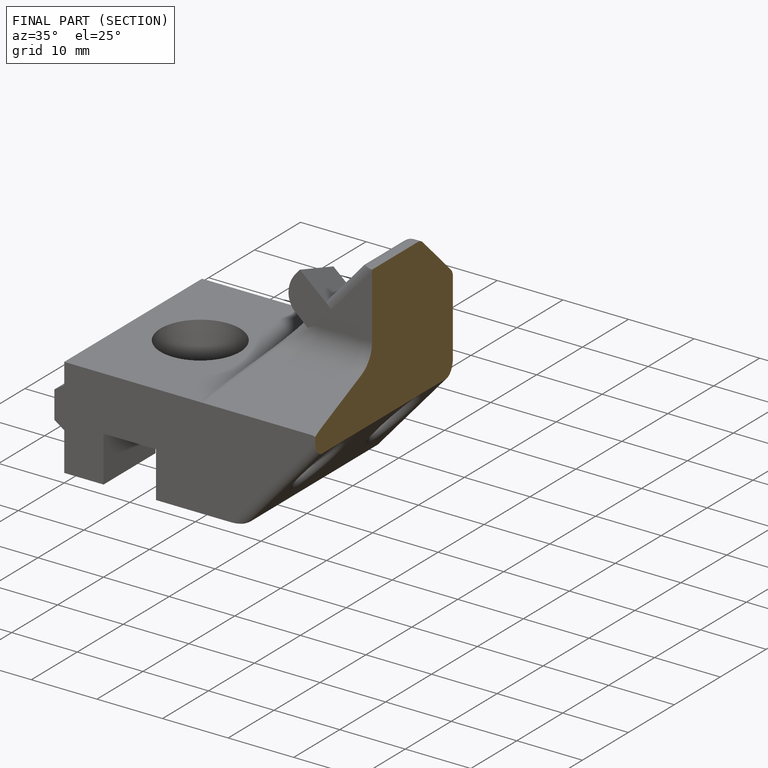
[diagram: finished part — half-section view (interior)]
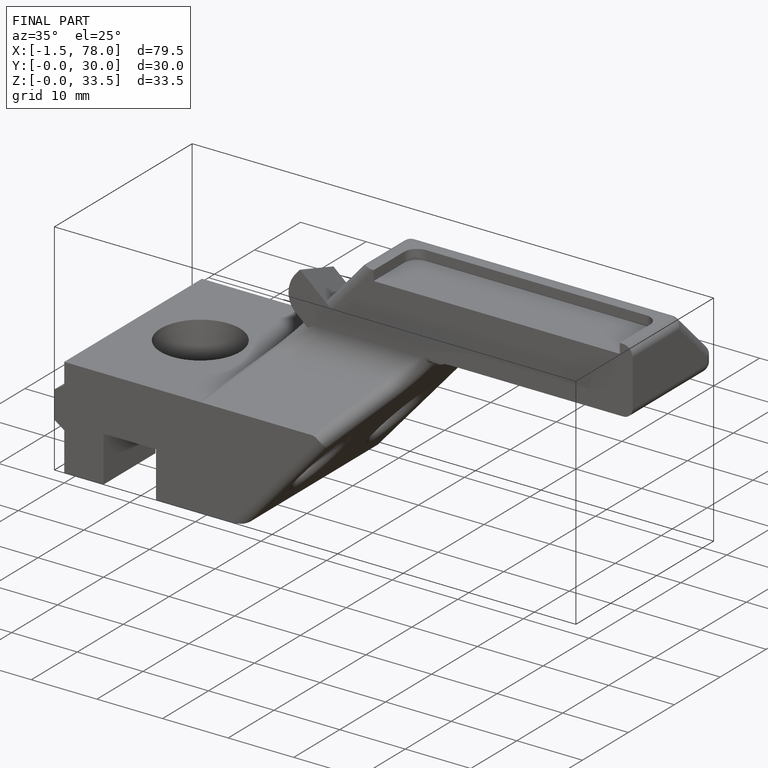
[diagram: finished part — iso view with bounding-box wireframe]
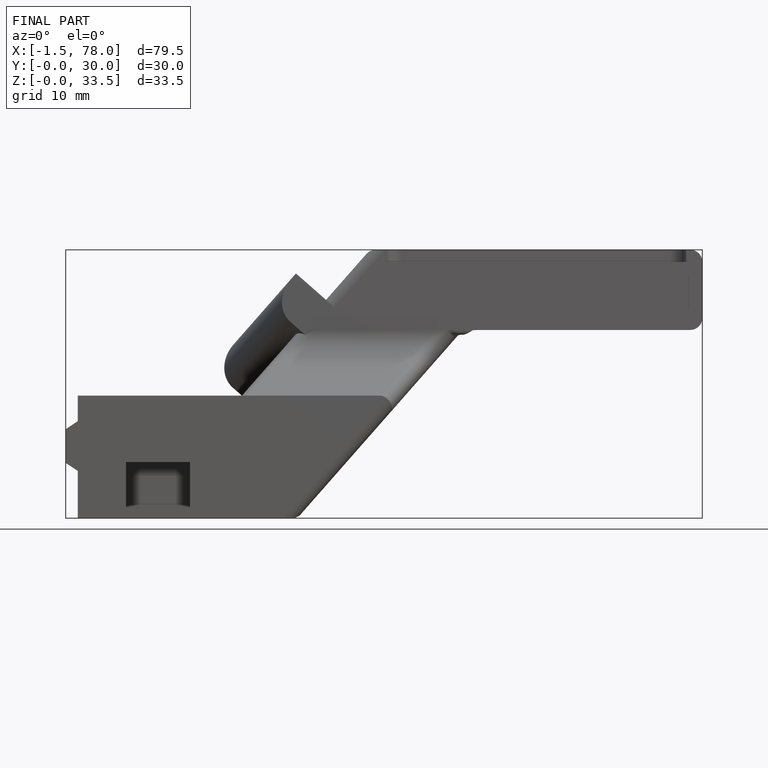
[diagram: finished part — front view with bounding-box wireframe]
